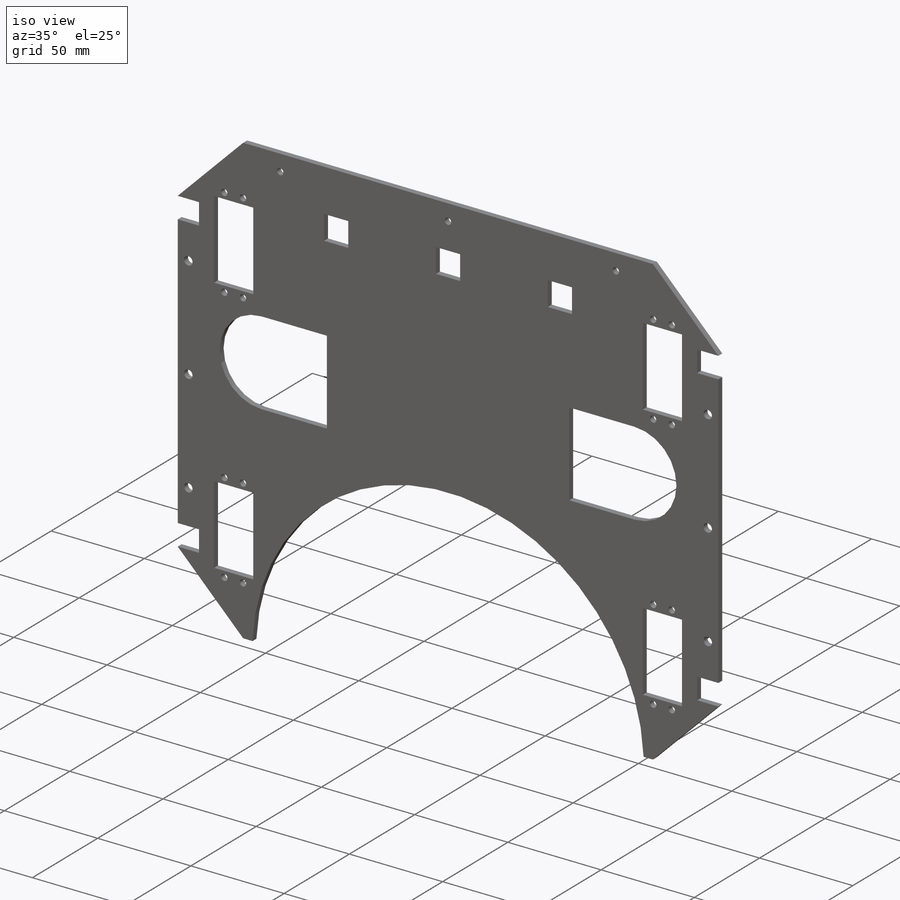
[diagram: iso view]
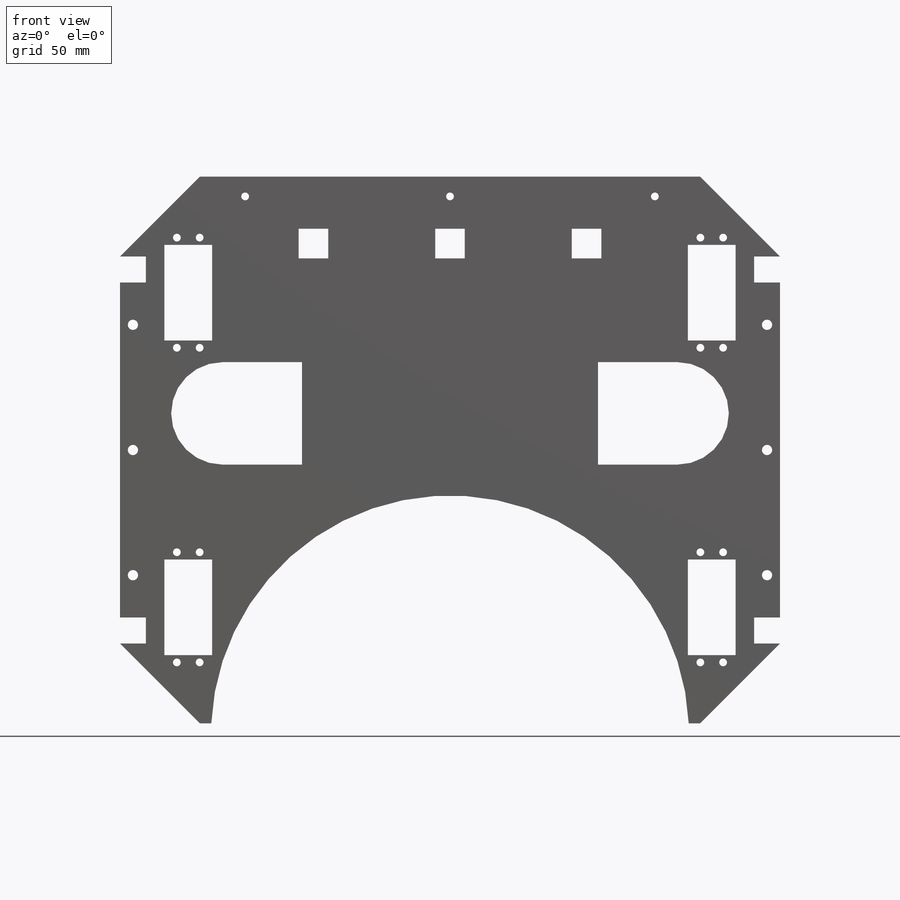
[diagram: front view]
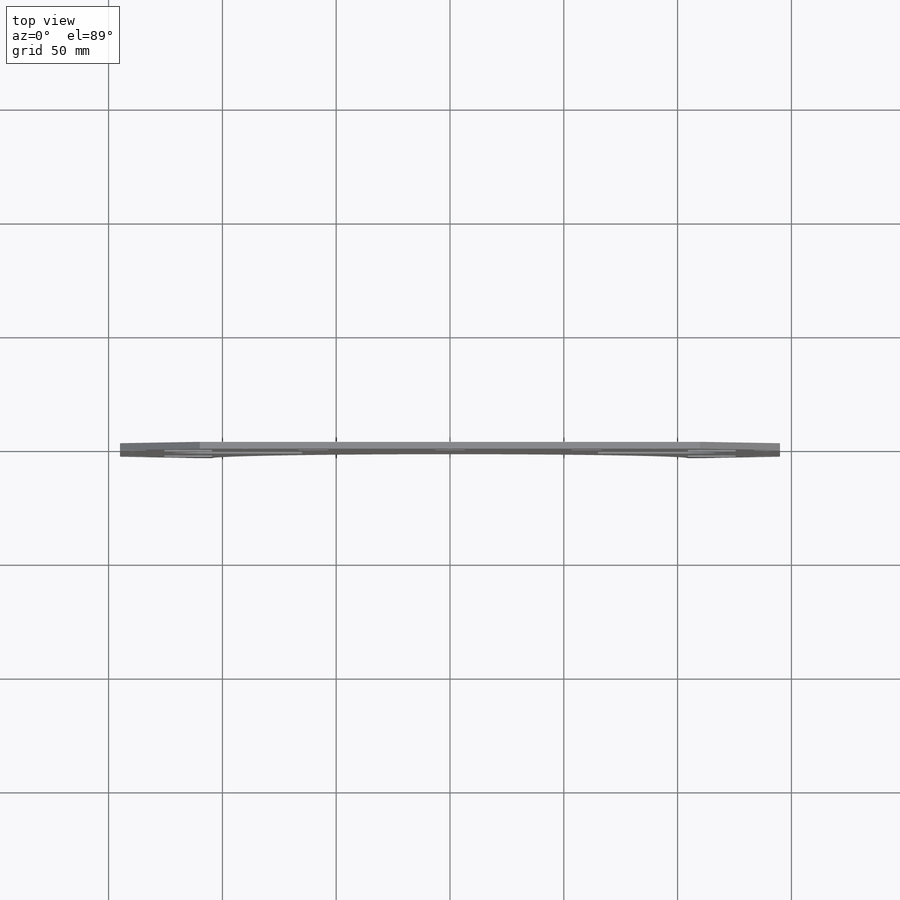
[diagram: top view]
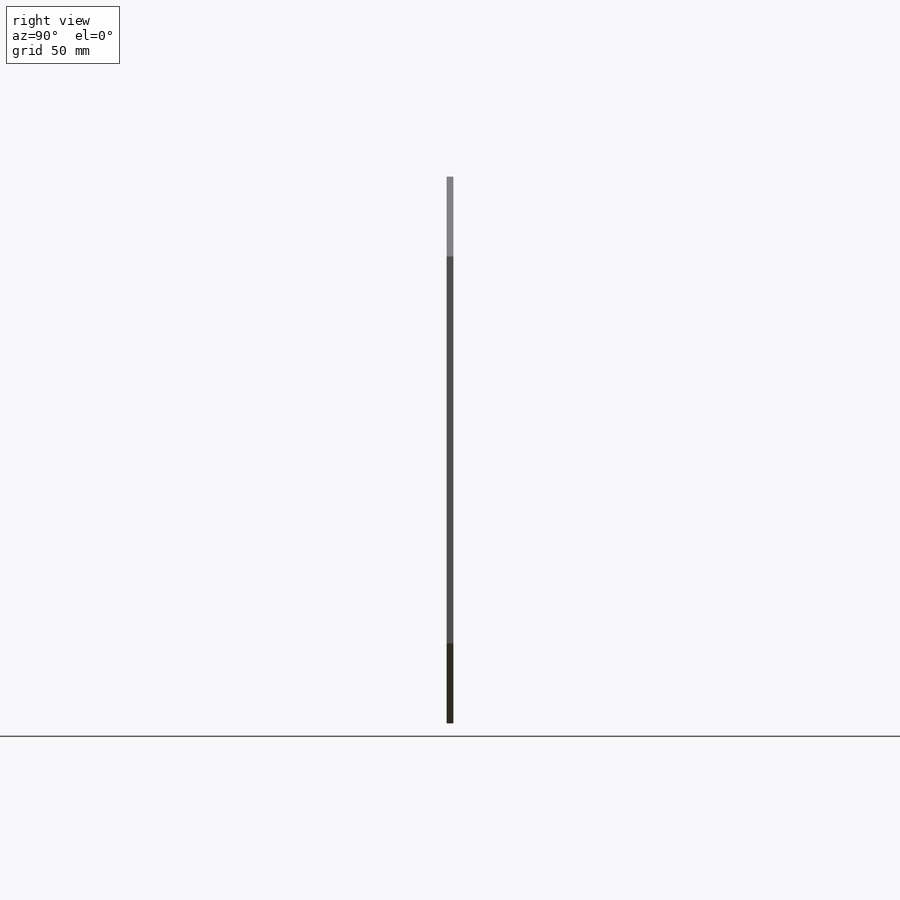
[diagram: right view]
SOLIDWORKS PART (.sldprt)
format: sldprt  version: not decoded by parser v0  size: 540,160 bytes
history: native  units: mm
features: sketch x14, cut_extrude x4, plane x3, hole x3, material x1, extrude x1 (+13 scaffold rows collapsed)
feature tree (39):
  scaffold x13  (default folders/planes/origin — collapsed)
  material  "Matériau <non spécifié>"
  plane  "Plan de face"
  plane  "Plan de dessus"
  plane  "Plan de droite"
  sketch  "Esquisse1"  dims[c1.D3=105.0mm c1.D4=105.0mm c2.D3=105.0mm c2.D8=105.0mm c2.D1=~7.199379mm c2.D2=~7.199379mm c3.D1=290.0mm c3.D2=290.0mm c3.D6=60.0mm c3.D7=60.0mm c3.D11=60.0mm c3.D4=60.0mm c3.D3=250.0mm c3.D5=5.0mm c3.D10=5.0mm c4.D11=~21.922359mm c4.D12=~21.922359mm c4.D4=85.0mm c4.D8=250.0mm c4.D9=75.0mm c5.D11=25.0mm c5.D12=37.5mm c5.D13=47.5mm c5.D14=47.5mm c5.D3=~219.772492mm]
  extrude  "Boss.-Extru.1"  Depth=3mm
  sketch  "Esquisse21"  dims[D1=11.4mm D2=11.4mm D3=5.7mm D4=5.7mm]
  sketch  "Esquisse26"  dims[c1.D1=~44.223231mm c1.D2=~45.997136mm c1.D3=42.0mm c1.D4=21.0mm c2.D1=30.0mm c2.D2=30.0mm c2.D5=30.0mm c2.D6=30.0mm c2.D7=42.0mm c2.D8=21.0mm c3.D5=30.0mm c3.D9=30.0mm c3.D10=30.0mm c3.D11=42.0mm c3.D12=21.0mm c3.D13=21.0mm c3.D14=42.0mm c3.D15=30.0mm c3.D16=30.0mm]
  cut_extrude  "Enlèv. mat.-Extru.1"  [1 undecoded]
  cut_extrude  "Enlèv. mat.-Extru.3"  [1 undecoded]
  sketch  "Esquisse27"  dims[c1.D1=10.0mm c1.D2=4.9mm c1.D3=10.0mm c1.D4=4.9mm c1.D5=~5.811023mm c1.D6=6.1mm c2.D2=5.0mm c2.D4=5.0mm c2.D5=24.2mm c2.D6=24.2mm c2.D7=24.2mm c2.D8=24.2mm]
  hole  "Dégagement M32"  Diameter=3.4mm Depth=3mm
  sketch  "Esquisse31"
  sketch  "Esquisse30"  dims[hole-wizard template sketch: 61 standard entries collapsed; hole parameters above]
  sketch  "Esquisse32"  dims[D1=8.7mm D2=55.0mm D3=55.0mm D4=55.0mm D5=55.0mm D6=90.0mm D7=90.0mm]
  hole  "Dégagement M33"  Diameter=3.4mm Depth=3mm
  sketch  "Esquisse34"
  sketch  "Esquisse33"  dims[hole-wizard template sketch: 61 standard entries collapsed; hole parameters above]
  sketch  "Esquisse36"  dims[c1.D1=~30.004888mm c1.D3=22.5mm c2.D1=45.0mm c2.D2=136.2mm c2.D4=35.0mm]
  cut_extrude  "Enlèv. mat.-Extru.4"  Depth=10mm
  sketch  "Esquisse37"  dims[D1=55.0mm D2=55.0mm D3=55.0mm D4=55.0mm]
  hole  "Dégagement M41"  Diameter=4.5mm Depth=3mm
  sketch  "Esquisse39"
  sketch  "Esquisse38"  dims[hole-wizard template sketch: 61 standard entries collapsed; hole parameters above]
  sketch  "Esquisse40"  dims[D1=29.4mm D2=60.0mm D3=60.0mm D4=13.0mm D5=13.0mm D6=13.0mm D7=13.0mm D8=13.0mm D9=13.0mm]
  cut_extrude  "Enlèv. mat.-Extru.5"  Depth=10mm
decode coverage: 17 of 22 modeling features carry decoded parameters
note: ~ marks probable driven/reference dimensions
note: 2 parameter values undecoded
note: suppression state not decoded; provenance and decode notes live in map.json
